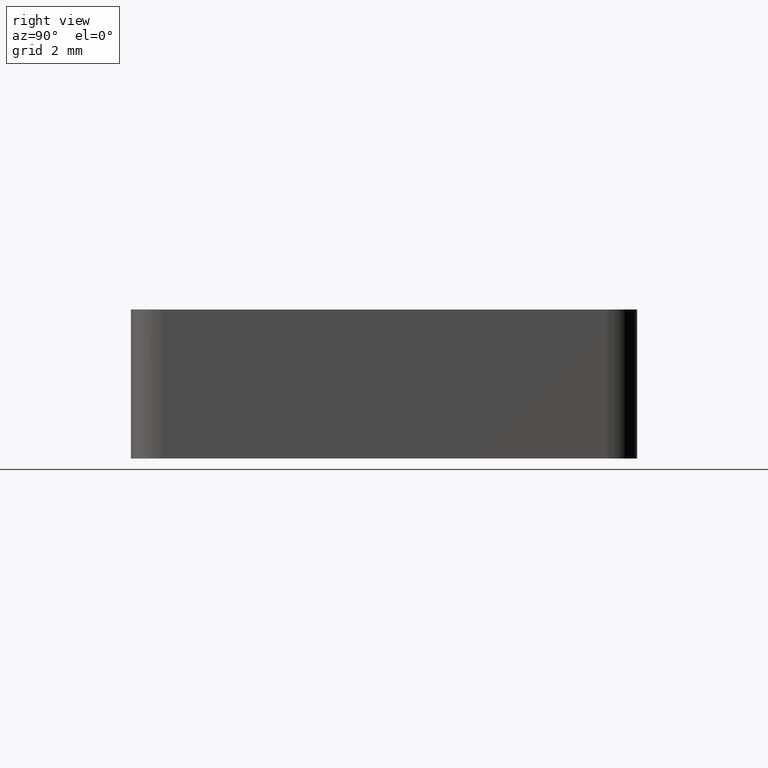
[diagram: clean part render]
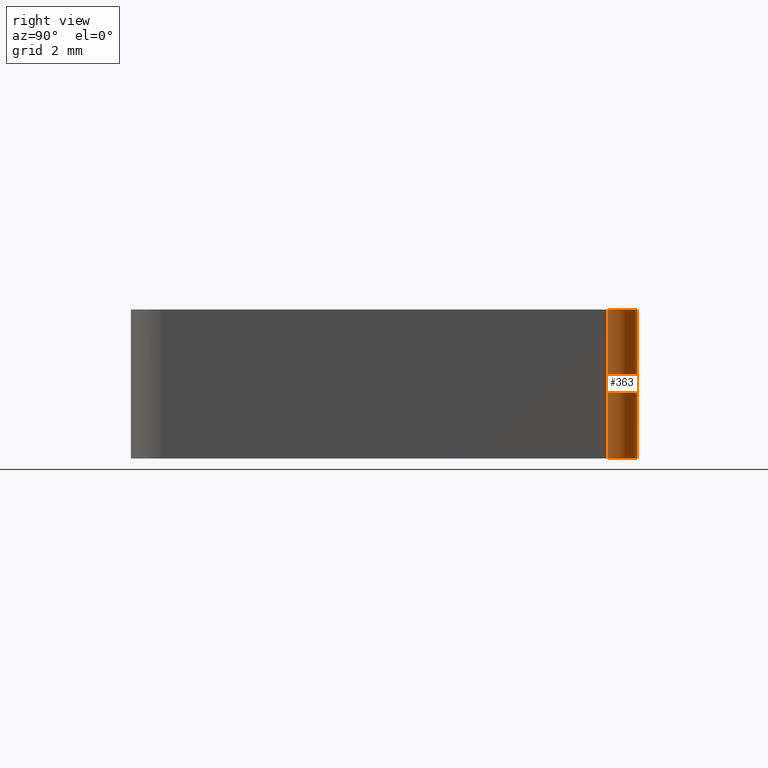
[diagram: same view with one face highlighted and labeled with its STEP entity id]
A machine part, right view. The second image highlights one B-rep face of the part: STEP entity #363.
In plain terms, the highlighted cylindrical surface (edge-blend (fillet) strip) has radius 1 mm, axis along (0, 0, -1).
Its self-contained STEP definition (entity closure, byte-faithful):
#131=CARTESIAN_POINT('',(8.499999999999993,7.500000000000012,-5.0));
#132=VERTEX_POINT('',#131);
#139=CARTESIAN_POINT('',(8.499999999999993,7.500000000000012,0.0));
#140=VERTEX_POINT('',#139);
#141=CARTESIAN_POINT('',(8.499999999999993,7.500000000000012,-5.0));
#142=DIRECTION('',(0.0,0.0,1.0));
#143=VECTOR('',#142,5.0);
#144=LINE('',#141,#143);
#145=EDGE_CURVE('',#132,#140,#144,.T.);
#169=CARTESIAN_POINT('',(7.499999999999993,8.500000000000011,0.0));
#170=VERTEX_POINT('',#169);
#179=CARTESIAN_POINT('',(7.499999999999993,8.500000000000011,-5.0));
#180=VERTEX_POINT('',#179);
#181=CARTESIAN_POINT('',(7.499999999999993,8.500000000000011,0.0));
#182=DIRECTION('',(0.0,0.0,-1.0));
#183=VECTOR('',#182,5.0);
#184=LINE('',#181,#183);
#185=EDGE_CURVE('',#170,#180,#184,.T.);
#210=CARTESIAN_POINT('',(7.499999999999993,7.500000000000012,0.0));
#211=DIRECTION('',(0.0,0.0,1.0));
#212=DIRECTION('',(1.0,0.0,0.0));
#213=AXIS2_PLACEMENT_3D('',#210,#211,#212);
#214=CIRCLE('',#213,1.000000000000001);
#215=EDGE_CURVE('',#140,#170,#214,.T.);
#260=CARTESIAN_POINT('',(7.499999999999993,7.500000000000012,-5.0));
#261=DIRECTION('',(0.0,0.0,-1.0));
#262=DIRECTION('',(1.0,0.0,0.0));
#263=AXIS2_PLACEMENT_3D('',#260,#261,#262);
#264=CIRCLE('',#263,1.000000000000001);
#265=EDGE_CURVE('',#180,#132,#264,.T.);
#352=CARTESIAN_POINT('',(7.499999999999993,7.500000000000012,1.000000E-008));
#353=DIRECTION('',(0.0,0.0,-1.0));
#354=DIRECTION('',(-1.0,0.0,0.0));
#355=AXIS2_PLACEMENT_3D('',#352,#353,#354);
#356=CYLINDRICAL_SURFACE('',#355,1.000000000000001);
#357=ORIENTED_EDGE('',*,*,#215,.F.);
#358=ORIENTED_EDGE('',*,*,#145,.F.);
#359=ORIENTED_EDGE('',*,*,#265,.F.);
#360=ORIENTED_EDGE('',*,*,#185,.F.);
#361=EDGE_LOOP('',(#357,#358,#359,#360));
#362=FACE_OUTER_BOUND('',#361,.T.);
#363=ADVANCED_FACE('',(#362),#356,.T.);